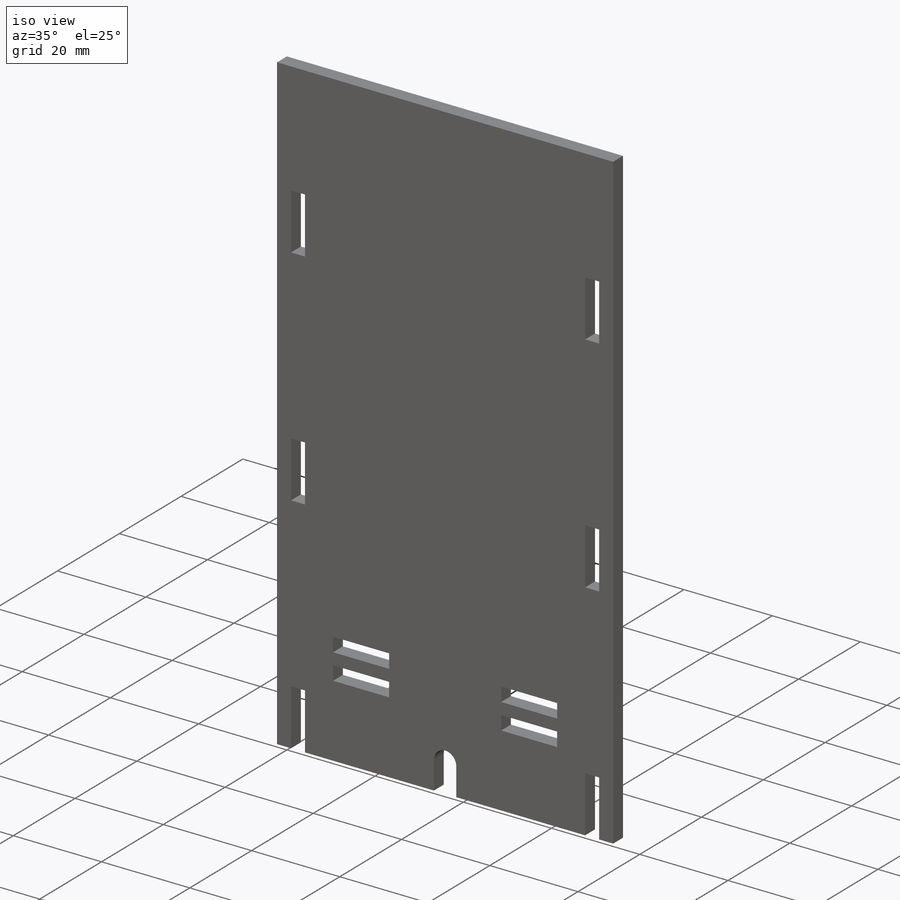
[diagram: iso view]
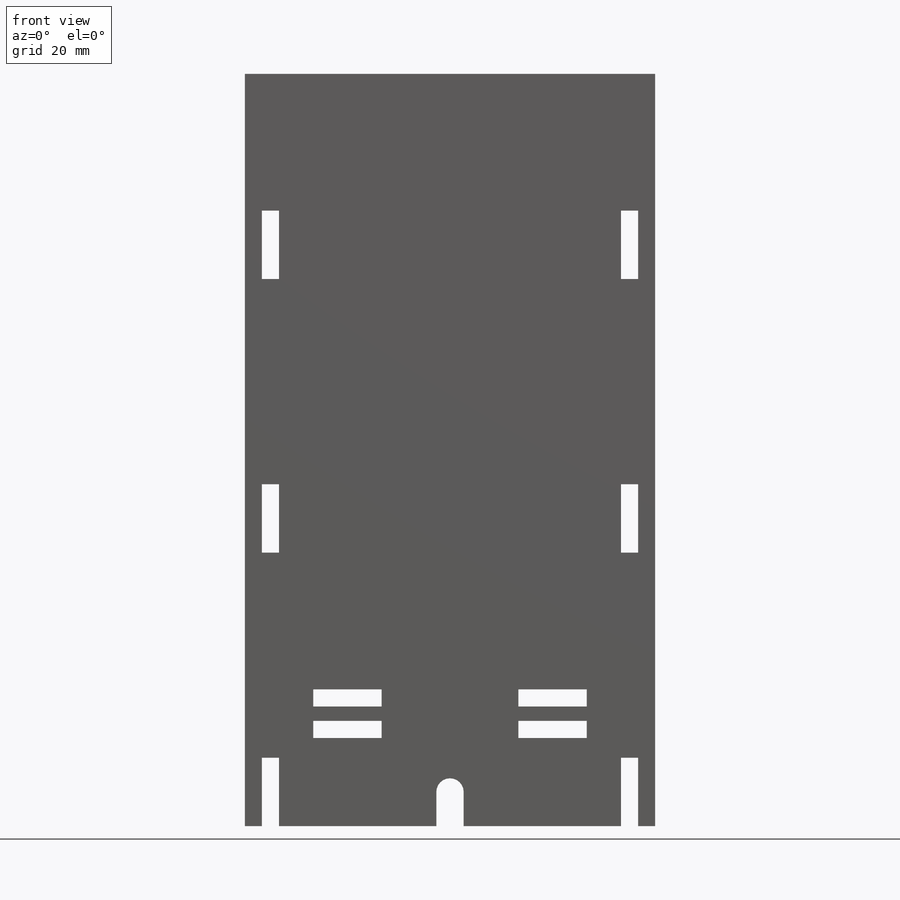
[diagram: front view]
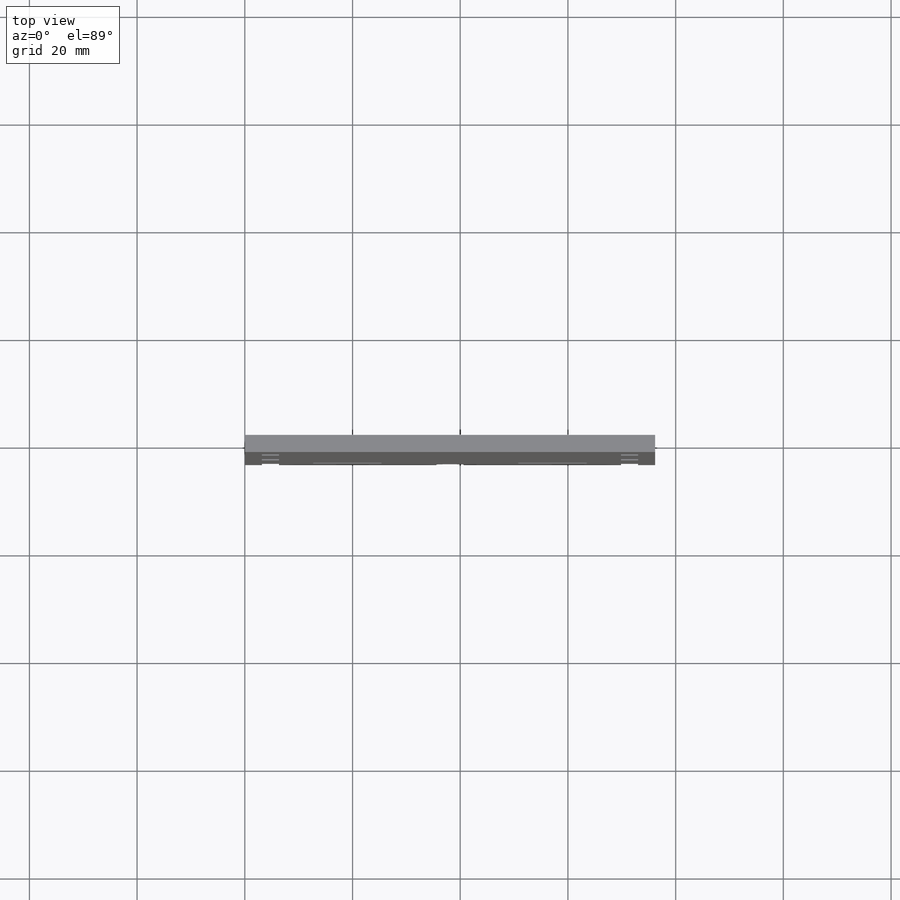
[diagram: top view]
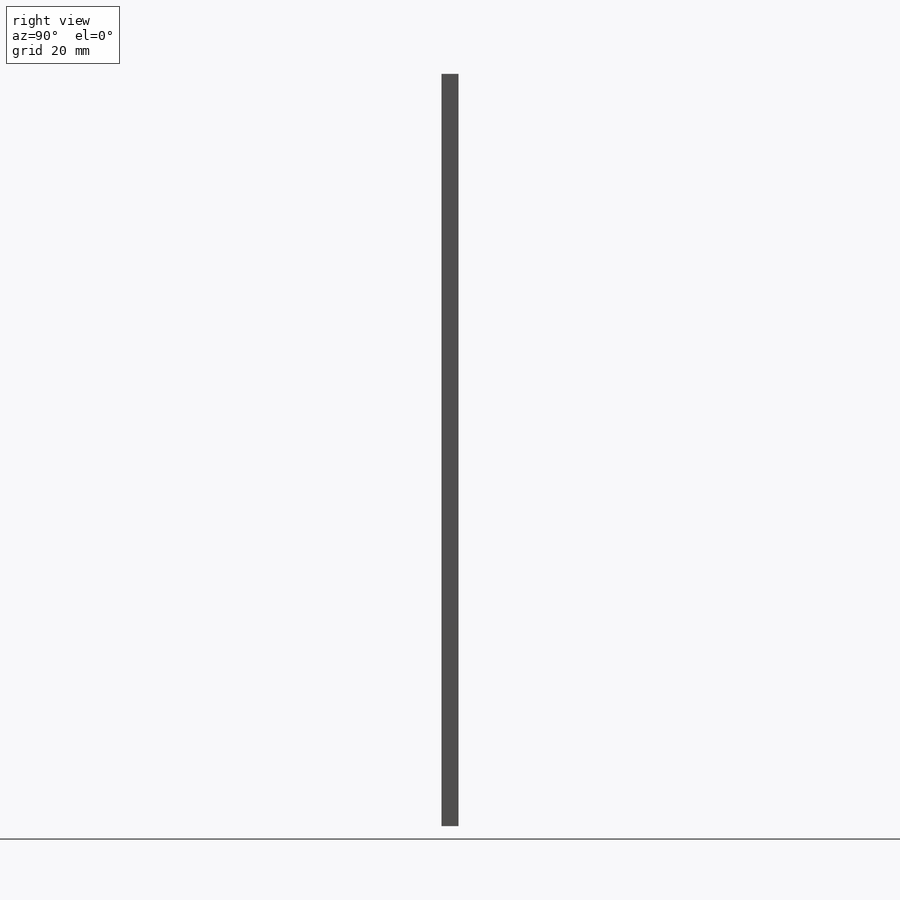
[diagram: right view]
SOLIDWORKS PART (.sldprt)
format: sldprt  version: not decoded by parser v0  size: 210,944 bytes
history: native  units: mm
features: sketch x4, cut_extrude x3, pattern_linear x2, material x1, extrude x1 (+16 scaffold rows collapsed)
feature tree (27):
  scaffold x16  (default folders/planes/origin — collapsed)
  material  "Material <not specified>"
  sketch  "Sketch1"  dims[D1=76.2mm D2=139.7mm]
  extrude  "Extrude1"  Depth=3.175mm
  sketch  "Sketch2"  dims[D1=6.35mm D2=38.1mm D3=5.08mm]
  cut_extrude  "Extrude2"  [1 undecoded]
  sketch  "Sketch3"  dims[D1=3.175mm D2=12.7mm D3=12.7mm D4=114.3mm]
  cut_extrude  "Extrude3"  [1 undecoded]
  pattern_linear  "LPattern1"  Count1=2 Count2=2 Spacing1=38.1mm Spacing2=5.842mm
  sketch  "Sketch4"  dims[D1=12.7mm D2=3.175mm D3=3.175mm]
  cut_extrude  "Extrude4"  [1 undecoded]
  pattern_linear  "LPattern2"  Count1=3 Count2=2 Spacing1=50.8mm Spacing2=66.675mm
decode coverage: 7 of 10 modeling features carry decoded parameters
note: 3 parameter values undecoded
summary: no parameter record found for 3 features
note: suppression state not decoded; provenance and decode notes live in map.json
